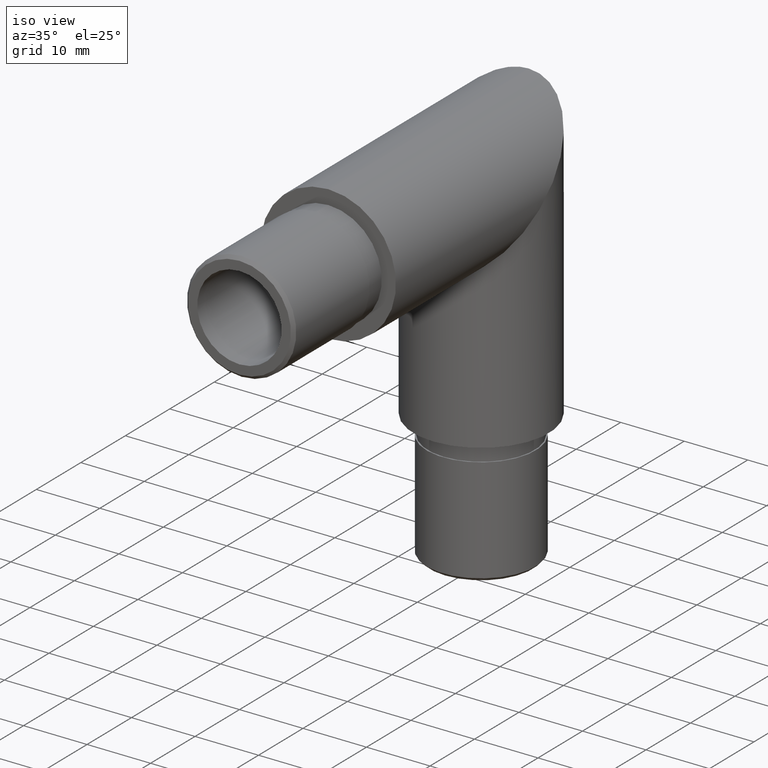
[diagram: clean part render]
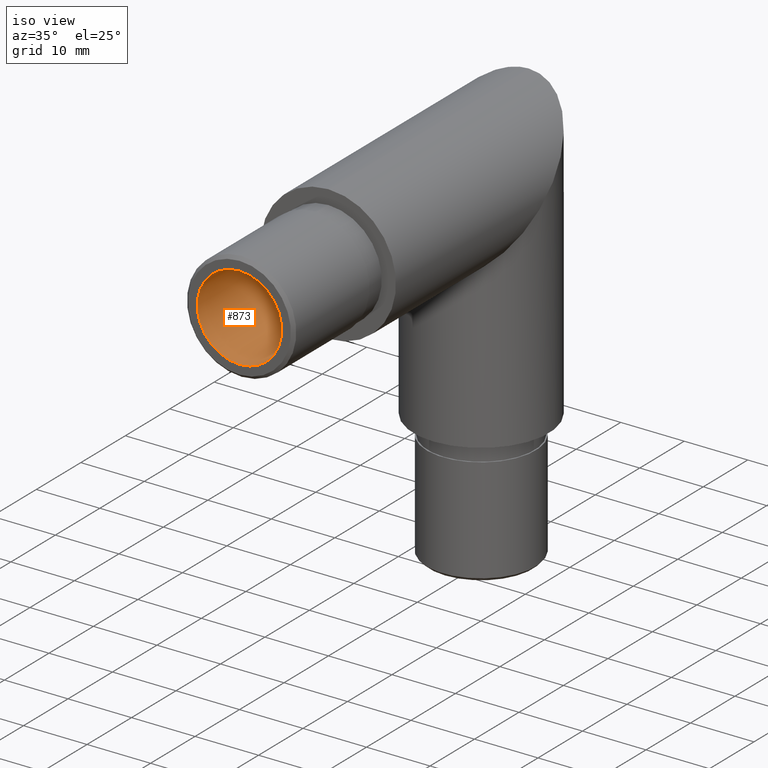
[diagram: same view with one face highlighted and labeled with its STEP entity id]
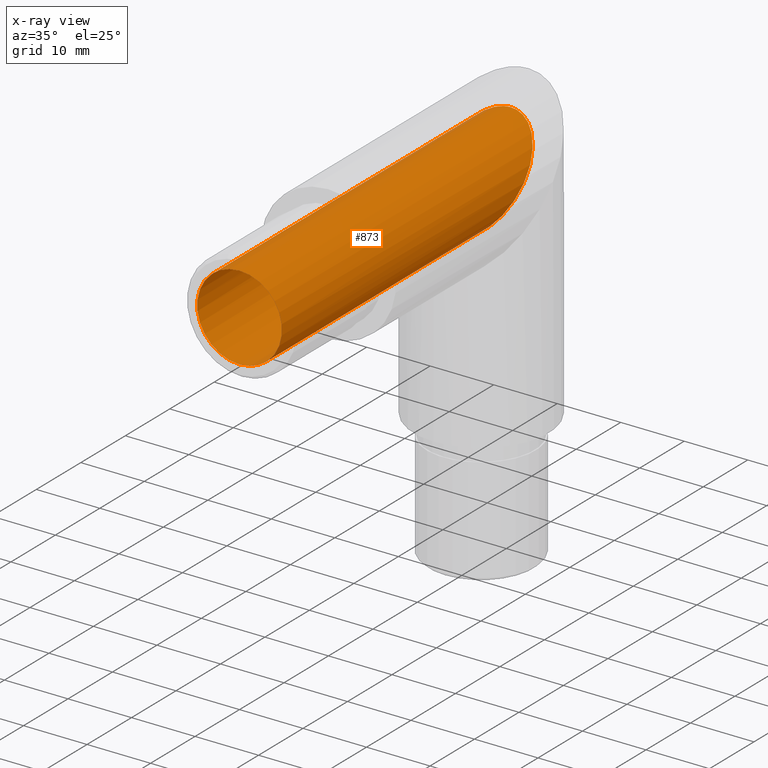
[diagram: x-ray of the same camera — body ghosted, the highlighted face saturated]
A machine part, iso view. The second image highlights one B-rep face of the part: STEP entity #873.
The next image is the same camera in x-ray: the body ghosted, the highlighted face saturated — about 1% of this face is hidden behind the body in this view.
In plain terms, the highlighted cylindrical surface (bore or boss wall) has radius 6.65 mm, axis along (-0, -1, -0).
Its self-contained STEP definition (entity closure, byte-faithful):
#555 = CARTESIAN_POINT ( 'NONE',  ( 13.29999999999999900, 41.00000000000001400, 6.650000000000002100 ) ) ;
#873 = ADVANCED_FACE ( 'NONE', ( #1709, #6932 ), #5637, .F. ) ;
#1709 = FACE_OUTER_BOUND ( 'NONE', #5799, .T. ) ;
#2326 = CARTESIAN_POINT ( 'NONE',  ( 0.0000000000000000000, 27.69999999999997100, -6.649999999999999500 ) ) ;
#2644 = CARTESIAN_POINT ( 'NONE',  ( 0.0000000000000000000, 27.69999999999997100, -6.649999999999999500 ) ) ;
#3242 = CARTESIAN_POINT ( 'NONE',  ( -8.143901214329898800E-016, 41.00000000000001400, 6.649999999999999500 ) ) ;
#3255 =( BOUNDED_CURVE ( )  B_SPLINE_CURVE ( 3, ( #2326, #9600, #7818, #3242, #555, #7775, #10673 ),
 .UNSPECIFIED., .T., .F. ) 
 B_SPLINE_CURVE_WITH_KNOTS ( ( 4, 3, 4 ),
 ( 0.0000000000000000000, 3.141592653589793100, 6.283185307179586200 ),
 .UNSPECIFIED. ) 
 CURVE ( )  GEOMETRIC_REPRESENTATION_ITEM ( )  RATIONAL_B_SPLINE_CURVE ( ( 1.000000000000000000, 0.3333333333333333700, 0.3333333333333333700, 1.000000000000000000, 0.3333333333333333700, 0.3333333333333333700, 1.000000000000000000 ) ) 
 REPRESENTATION_ITEM ( '' )  );
#3305 = EDGE_CURVE ( 'NONE', #9590, #9590, #3255, .T. ) ;
#3677 = EDGE_CURVE ( 'NONE', #4133, #4133, #11634, .T. ) ;
#4133 = VERTEX_POINT ( 'NONE', #7118 ) ;
#4325 = CARTESIAN_POINT ( 'NONE',  ( 0.0000000000000000000, -20.00000000000000000, 0.0000000000000000000 ) ) ;
#5637 = CYLINDRICAL_SURFACE ( 'NONE', #8721, 6.649999999999999500 ) ;
#5660 = DIRECTION ( 'NONE',  ( -0.0000000000000000000, -1.000000000000000000, -0.0000000000000000000 ) ) ;
#5779 = ORIENTED_EDGE ( 'NONE', *, *, #3305, .T. ) ;
#5799 = EDGE_LOOP ( 'NONE', ( #5779 ) ) ;
#6250 = DIRECTION ( 'NONE',  ( 0.0000000000000000000, 0.0000000000000000000, -1.000000000000000000 ) ) ;
#6932 = FACE_OUTER_BOUND ( 'NONE', #7955, .T. ) ;
#7118 = CARTESIAN_POINT ( 'NONE',  ( 0.0000000000000000000, -20.00000000000000000, -6.650000000000000400 ) ) ;
#7375 = CARTESIAN_POINT ( 'NONE',  ( 0.0000000000000000000, 64.47274887854692300, 0.0000000000000000000 ) ) ;
#7775 = CARTESIAN_POINT ( 'NONE',  ( 13.29999999999999900, 27.69999999999997400, -6.649999999999999500 ) ) ;
#7818 = CARTESIAN_POINT ( 'NONE',  ( -13.29999999999999900, 41.00000000000001400, 6.649999999999998600 ) ) ;
#7955 = EDGE_LOOP ( 'NONE', ( #9689 ) ) ;
#8721 = AXIS2_PLACEMENT_3D ( 'NONE', #7375, #5660, #11943 ) ;
#9590 = VERTEX_POINT ( 'NONE', #2644 ) ;
#9600 = CARTESIAN_POINT ( 'NONE',  ( -13.29999999999999900, 27.69999999999997400, -6.649999999999999500 ) ) ;
#9689 = ORIENTED_EDGE ( 'NONE', *, *, #3677, .T. ) ;
#9942 = DIRECTION ( 'NONE',  ( 0.0000000000000000000, -1.000000000000000000, 0.0000000000000000000 ) ) ;
#10673 = CARTESIAN_POINT ( 'NONE',  ( 0.0000000000000000000, 27.69999999999997100, -6.649999999999999500 ) ) ;
#11634 = CIRCLE ( 'NONE', #11816, 6.650000000000000400 ) ;
#11816 = AXIS2_PLACEMENT_3D ( 'NONE', #4325, #9942, #6250 ) ;
#11943 = DIRECTION ( 'NONE',  ( 0.0000000000000000000, 0.0000000000000000000, -1.000000000000000000 ) ) ;